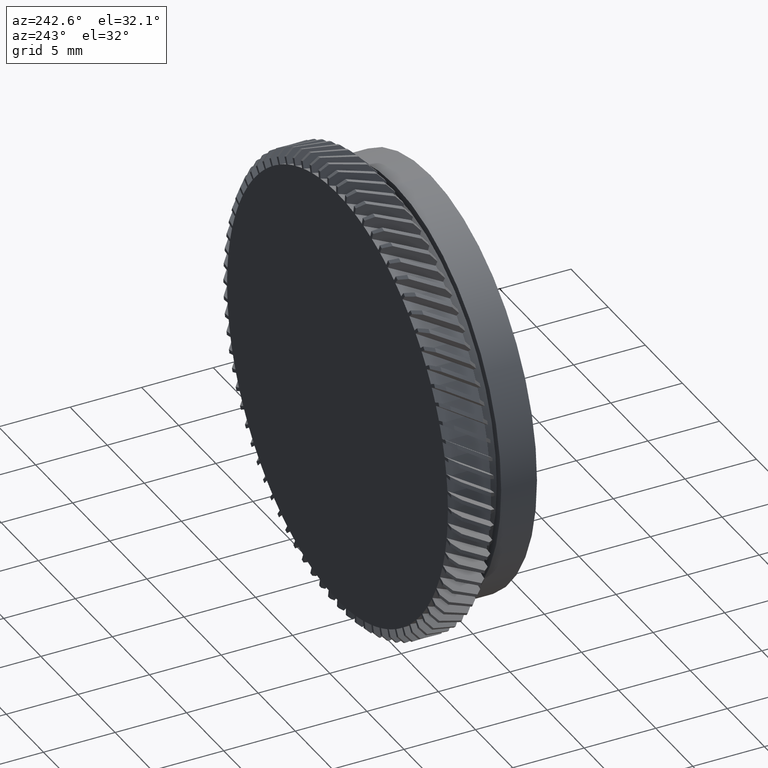
[diagram: clean part render]
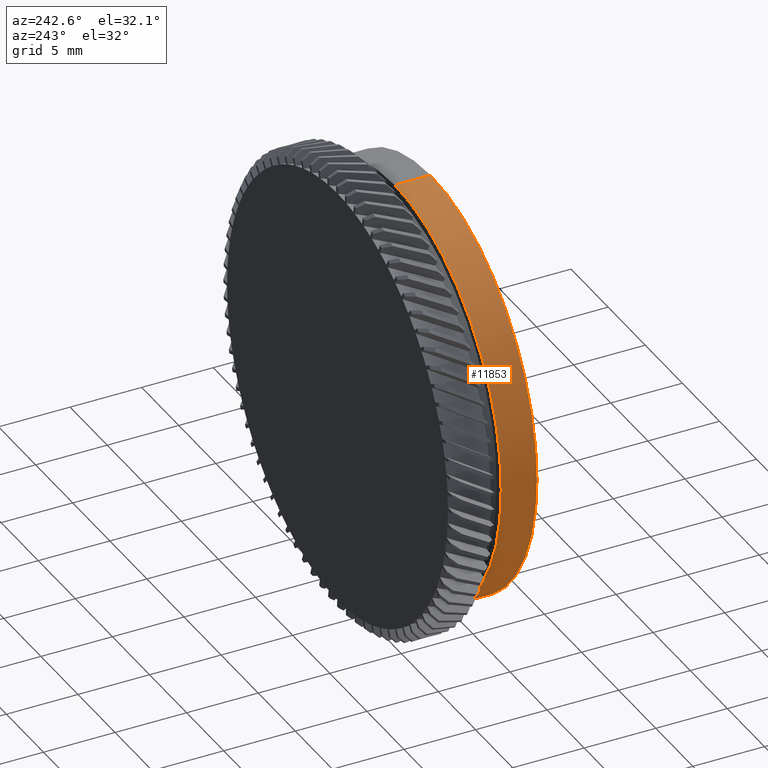
[diagram: same view with one face highlighted and labeled with its STEP entity id]
A machine part, auxiliary view. The second image highlights one B-rep face of the part: STEP entity #11853.
In plain terms, the highlighted cylindrical surface (partial cylindrical patch) has radius 14.35 mm, axis along (-0, 1, -0).
Its self-contained STEP definition (entity closure, byte-faithful):
#106 = DIRECTION ( 'NONE',  ( 0.0000000000000000000, 0.0000000000000000000, 1.000000000000000000 ) ) ;
#219 = VECTOR ( 'NONE', #7329, 1000.000000000000000 ) ;
#280 = ORIENTED_EDGE ( 'NONE', *, *, #11667, .F. ) ;
#585 = AXIS2_PLACEMENT_3D ( 'NONE', #18112, #2678, #9109 ) ;
#2539 = CARTESIAN_POINT ( 'NONE',  ( 0.0000000000000000000, 15.37125740523061900, 14.35000000000000500 ) ) ;
#2550 = CIRCLE ( 'NONE', #14551, 14.35000000000000500 ) ;
#2678 = DIRECTION ( 'NONE',  ( -0.0000000000000000000, 1.000000000000000000, -0.0000000000000000000 ) ) ;
#3238 = FACE_OUTER_BOUND ( 'NONE', #7787, .T. ) ;
#3558 = VERTEX_POINT ( 'NONE', #10694 ) ;
#4104 = CARTESIAN_POINT ( 'NONE',  ( 0.0000000000000000000, 17.87125740523061500, 14.35000000000000500 ) ) ;
#4328 = CARTESIAN_POINT ( 'NONE',  ( 1.757368156776452400E-015, 66.62876213592232900, -14.35000000000000500 ) ) ;
#4418 = VERTEX_POINT ( 'NONE', #4104 ) ;
#4591 = ORIENTED_EDGE ( 'NONE', *, *, #4947, .F. ) ;
#4947 = EDGE_CURVE ( 'NONE', #3558, #12519, #15026, .T. ) ;
#5116 = CARTESIAN_POINT ( 'NONE',  ( 0.0000000000000000000, 17.87125740523061500, 0.0000000000000000000 ) ) ;
#6693 = DIRECTION ( 'NONE',  ( 0.0000000000000000000, 0.0000000000000000000, 1.000000000000000000 ) ) ;
#7056 = EDGE_CURVE ( 'NONE', #9115, #4418, #16386, .T. ) ;
#7329 = DIRECTION ( 'NONE',  ( -0.0000000000000000000, 1.000000000000000000, -0.0000000000000000000 ) ) ;
#7622 = DIRECTION ( 'NONE',  ( -0.0000000000000000000, 1.000000000000000000, -0.0000000000000000000 ) ) ;
#7787 = EDGE_LOOP ( 'NONE', ( #4591, #18171, #17177, #280 ) ) ;
#9109 = DIRECTION ( 'NONE',  ( 0.0000000000000000000, 0.0000000000000000000, 1.000000000000000000 ) ) ;
#9115 = VERTEX_POINT ( 'NONE', #2539 ) ;
#9199 = DIRECTION ( 'NONE',  ( -0.0000000000000000000, 1.000000000000000000, -0.0000000000000000000 ) ) ;
#9266 = EDGE_CURVE ( 'NONE', #3558, #9115, #2550, .T. ) ;
#10694 = CARTESIAN_POINT ( 'NONE',  ( 1.757368156776452400E-015, 15.37125740523061900, -14.35000000000000500 ) ) ;
#11667 = EDGE_CURVE ( 'NONE', #12519, #4418, #19715, .T. ) ;
#11853 = ADVANCED_FACE ( 'NONE', ( #3238 ), #19166, .T. ) ;
#12519 = VERTEX_POINT ( 'NONE', #15714 ) ;
#13999 = CARTESIAN_POINT ( 'NONE',  ( 0.0000000000000000000, 15.37125740523061900, 0.0000000000000000000 ) ) ;
#14551 = AXIS2_PLACEMENT_3D ( 'NONE', #13999, #7622, #106 ) ;
#15026 = LINE ( 'NONE', #4328, #219 ) ;
#15714 = CARTESIAN_POINT ( 'NONE',  ( 1.757368156776452400E-015, 17.87125740523061500, -14.35000000000000500 ) ) ;
#15932 = DIRECTION ( 'NONE',  ( -0.0000000000000000000, 1.000000000000000000, -0.0000000000000000000 ) ) ;
#16125 = AXIS2_PLACEMENT_3D ( 'NONE', #5116, #15932, #6693 ) ;
#16386 = LINE ( 'NONE', #18465, #16894 ) ;
#16894 = VECTOR ( 'NONE', #9199, 1000.000000000000000 ) ;
#17177 = ORIENTED_EDGE ( 'NONE', *, *, #7056, .T. ) ;
#18112 = CARTESIAN_POINT ( 'NONE',  ( 0.0000000000000000000, 66.62876213592232900, 0.0000000000000000000 ) ) ;
#18171 = ORIENTED_EDGE ( 'NONE', *, *, #9266, .T. ) ;
#18465 = CARTESIAN_POINT ( 'NONE',  ( 0.0000000000000000000, 66.62876213592232900, 14.35000000000000500 ) ) ;
#19166 = CYLINDRICAL_SURFACE ( 'NONE', #585, 14.35000000000000500 ) ;
#19715 = CIRCLE ( 'NONE', #16125, 14.35000000000000500 ) ;